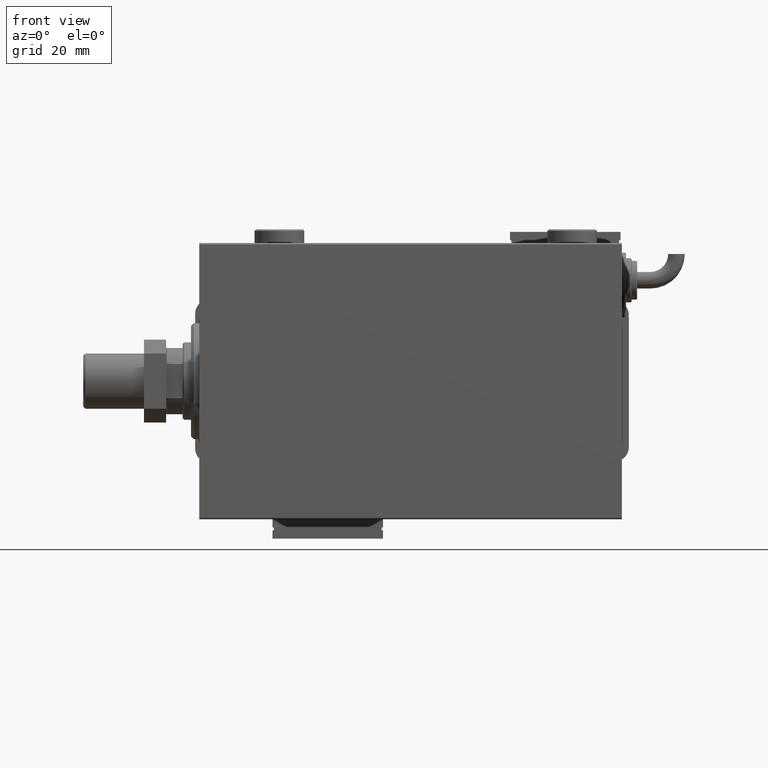
[diagram: clean part render]
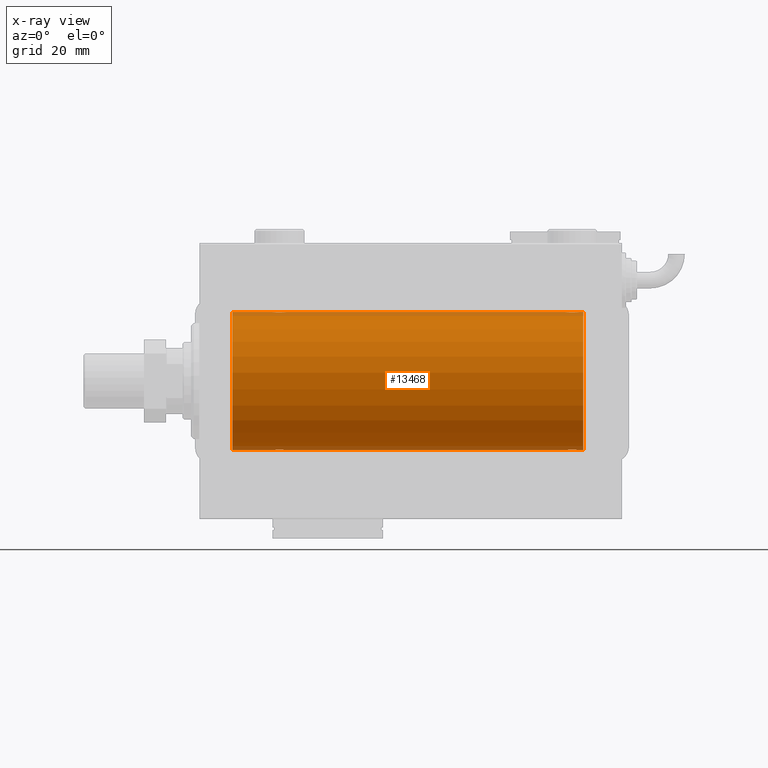
[diagram: x-ray — body ghosted, one internal face saturated and labeled with its STEP entity id]
A machine part, front view, then the same camera in x-ray: the body is ghosted and one INTERNAL B-rep face — a face not visible from any outside direction — is saturated and labeled: STEP entity #13468.
In plain terms, the highlighted cylindrical surface (partial cylindrical patch) has radius 25 mm, axis along (-1, -0, -0).
Its self-contained STEP definition (entity closure, byte-faithful):
#176 = CARTESIAN_POINT ( 'NONE',  ( 133.3461666385066167, -1.881857718844717642, 24.92933960374833546 ) ) ;
#406 = CARTESIAN_POINT ( 'NONE',  ( 139.0000000000000000, 0.000000000000000000, 0.000000000000000000 ) ) ;
#448 = CARTESIAN_POINT ( 'NONE',  ( 136.9874981583439819, -1.525407911884361534, -24.95379469572361941 ) ) ;
#477 = EDGE_CURVE ( 'NONE', #9784, #25607, #24844, .T. ) ;
#481 = CARTESIAN_POINT ( 'NONE',  ( 134.8329350482193831, -2.499872792855079240, 24.87469871246083031 ) ) ;
#769 = CARTESIAN_POINT ( 'NONE',  ( 136.8841238278646983, -1.651251241585101059, -24.94567559498349141 ) ) ;
#863 = CARTESIAN_POINT ( 'NONE',  ( 31.50000000000000000, 3.061616978460191625E-15, -25.00000000000000000 ) ) ;
#1398 = CARTESIAN_POINT ( 'NONE',  ( 27.74915976075944712, -2.170728182476714174, -24.90574631553725027 ) ) ;
#2023 = CARTESIAN_POINT ( 'NONE',  ( 27.11814045851354393, -1.653834020452933151, -24.94550385189584674 ) ) ;
#2637 = CARTESIAN_POINT ( 'NONE',  ( 26.50000000000001066, -0.3305063766663757785, -25.00000000000000355 ) ) ;
#3109 = CARTESIAN_POINT ( 'NONE',  ( 27.88963203491136156, -2.245863995402901381, 24.89899750494197050 ) ) ;
#3404 = VECTOR ( 'NONE', #49369, 1000.000000000000000 ) ;
#4022 = CARTESIAN_POINT ( 'NONE',  ( 30.10723845838409929, -2.247417070759899271, 24.89885693081946272 ) ) ;
#4534 = ORIENTED_EDGE ( 'NONE', *, *, #51432, .T. ) ;
#4857 = CARTESIAN_POINT ( 'NONE',  ( 136.5225677434018792, -1.989585286700252809, 24.92087098724766747 ) ) ;
#4891 = CARTESIAN_POINT ( 'NONE',  ( 137.5000000000000000, 3.061616978453486307E-15, -25.00000000000000000 ) ) ;
#5087 = FACE_OUTER_BOUND ( 'NONE', #56194, .T. ) ;
#5131 = CARTESIAN_POINT ( 'NONE',  ( 137.5000000000000000, -0.1631750940176147080, -25.00000000000000711 ) ) ;
#5436 = CARTESIAN_POINT ( 'NONE',  ( 135.1670649517805884, -2.499872792855077464, -24.87469871246082320 ) ) ;
#5786 = CARTESIAN_POINT ( 'NONE',  ( 29.32947680114268962, -2.483544361357264751, -24.87635491893502149 ) ) ;
#6085 = CARTESIAN_POINT ( 'NONE',  ( 28.67403429960539896, -2.484007091859758543, -24.87630842367763151 ) ) ;
#6332 = CARTESIAN_POINT ( 'NONE',  ( 26.50000000000000355, -1.828402720252098442E-15, -25.00000000000000000 ) ) ;
#6690 = CARTESIAN_POINT ( 'NONE',  ( 29.80788342405805835, -2.371528299825740760, -24.88734287464371064 ) ) ;
#7042 = DIRECTION ( 'NONE',  ( -1.000000000000000000, -0.000000000000000000, -0.000000000000000000 ) ) ;
#7159 = CARTESIAN_POINT ( 'NONE',  ( 26.57985090779070703, -0.6480119923854221753, 24.99212088949390420 ) ) ;
#7282 = EDGE_CURVE ( 'NONE', #9735, #39839, #38428, .T. ) ;
#7567 = CARTESIAN_POINT ( 'NONE',  ( 134.1956433908369775, -2.372734907014170336, -24.88722742718433167 ) ) ;
#7773 = CARTESIAN_POINT ( 'NONE',  ( 29.64560666148631540, -2.420689345803762382, 24.88254961038873958 ) ) ;
#8542 = DIRECTION ( 'NONE',  ( -1.000000000000000000, -0.000000000000000000, -0.000000000000000000 ) ) ;
#8906 = CARTESIAN_POINT ( 'NONE',  ( 135.8043566091630510, -2.372734907014173000, 24.88722742718433878 ) ) ;
#8986 = VERTEX_POINT ( 'NONE', #6332 ) ;
#9305 = CARTESIAN_POINT ( 'NONE',  ( 30.88185954148645251, -1.653834020452943809, 24.94550385189585029 ) ) ;
#9488 = ORIENTED_EDGE ( 'NONE', *, *, #42208, .F. ) ;
#9495 = CARTESIAN_POINT ( 'NONE',  ( 136.5253618224307957, -1.987446652080256060, -24.92104239223419881 ) ) ;
#9735 = VERTEX_POINT ( 'NONE', #4891 ) ;
#9784 = VERTEX_POINT ( 'NONE', #48479 ) ;
#10129 = CARTESIAN_POINT ( 'NONE',  ( 135.6490439016909875, -2.419770561643898255, -24.88263927071751169 ) ) ;
#10462 = CARTESIAN_POINT ( 'NONE',  ( 29.64904390169096970, -2.419770561643902695, -24.88263927071750459 ) ) ;
#10775 = CARTESIAN_POINT ( 'NONE',  ( 30.65383336149337623, -1.881857718844709870, -24.92933960374833191 ) ) ;
#11102 = LINE ( 'NONE', #30357, #3404 ) ;
#11371 = CARTESIAN_POINT ( 'NONE',  ( 31.24760251019551305, -1.106703319666880514, -24.97594585958023927 ) ) ;
#11649 = CARTESIAN_POINT ( 'NONE',  ( 133.0146196628290340, -1.528152964861315244, -24.95362559291378801 ) ) ;
#13062 = CARTESIAN_POINT ( 'NONE',  ( 30.52256774340189338, -1.989585286700249256, 24.92087098724766747 ) ) ;
#13269 = CARTESIAN_POINT ( 'NONE',  ( 132.6278403059139634, -0.8058335233485443005, 24.98746277938383287 ) ) ;
#13468 = ADVANCED_FACE ( 'NONE', ( #5087 ), #24069, .F. ) ;
#13680 = CARTESIAN_POINT ( 'NONE',  ( 31.50000000000000000, -6.390602579065537931E-15, 25.00000000000000000 ) ) ;
#13863 = CARTESIAN_POINT ( 'NONE',  ( 132.5000000000000000, -7.333514367867041916E-15, -25.00000000000000000 ) ) ;
#13898 = CARTESIAN_POINT ( 'NONE',  ( 132.8298870971907490, -1.252049606094326695, 24.96900299967627390 ) ) ;
#14096 = VECTOR ( 'NONE', #7042, 1000.000000000000000 ) ;
#14203 = CARTESIAN_POINT ( 'NONE',  ( 135.6456066614862834, -2.420689345803761938, 24.88254961038872892 ) ) ;
#14790 = CARTESIAN_POINT ( 'NONE',  ( 136.1103679650886988, -2.245863995402897384, -24.89899750494197761 ) ) ;
#14942 = CARTESIAN_POINT ( 'NONE',  ( 12.00000000000001066, 0.000000000000000000, 0.000000000000000000 ) ) ;
#15004 = DIRECTION ( 'NONE',  ( -1.000000000000000000, -0.000000000000000000, -0.000000000000000000 ) ) ;
#15093 = CARTESIAN_POINT ( 'NONE',  ( 134.3543933385136881, -2.420689345803760162, -24.88254961038872892 ) ) ;
#15125 = CARTESIAN_POINT ( 'NONE',  ( 31.17011290280924740, -1.252049606094333578, -24.96900299967627390 ) ) ;
#15709 = CARTESIAN_POINT ( 'NONE',  ( 137.2476025101955202, -1.106703319666876295, -24.97594585958023927 ) ) ;
#16352 = VECTOR ( 'NONE', #8542, 1000.000000000000000 ) ;
#16617 = CARTESIAN_POINT ( 'NONE',  ( 133.8927615416158972, -2.247417070759893498, -24.89885693081946982 ) ) ;
#16818 = CARTESIAN_POINT ( 'NONE',  ( 28.83293504821939734, -2.499872792855082793, 24.87469871246083031 ) ) ;
#16916 = CARTESIAN_POINT ( 'NONE',  ( 132.8317235850605016, -1.255214705003186548, -24.96884293994578741 ) ) ;
#17124 = CARTESIAN_POINT ( 'NONE',  ( 27.11587617213529100, -1.651251241585102614, 24.94567559498349141 ) ) ;
#17423 = CARTESIAN_POINT ( 'NONE',  ( 28.35095609830903385, -2.419770561643910245, 24.88263927071751169 ) ) ;
#18250 = CARTESIAN_POINT ( 'NONE',  ( 132.5158215994234752, -0.3254210271412208977, 24.99840249400844527 ) ) ;
#18342 = CARTESIAN_POINT ( 'NONE',  ( 30.65121133559111755, -1.884161199660622454, 24.92916496727982434 ) ) ;
#18390 = ORIENTED_EDGE ( 'NONE', *, *, #40808, .T. ) ;
#18884 = CARTESIAN_POINT ( 'NONE',  ( 137.4334935523974650, -0.6588655613945811895, 24.99312727339969697 ) ) ;
#19154 = ORIENTED_EDGE ( 'NONE', *, *, #55027, .T. ) ;
#19182 = CARTESIAN_POINT ( 'NONE',  ( 137.5000000000000000, 1.404322005998729010E-15, 25.00000000000000000 ) ) ;
#19459 = CARTESIAN_POINT ( 'NONE',  ( 136.2538319542450154, -2.169003991399864884, -24.90589728951138682 ) ) ;
#19802 = CARTESIAN_POINT ( 'NONE',  ( 31.49999999999999289, -0.1631750940176170117, -25.00000000000000711 ) ) ;
#20104 = CARTESIAN_POINT ( 'NONE',  ( 31.50000000000000000, 3.061616978460191625E-15, -25.00000000000000000 ) ) ;
#20400 = CARTESIAN_POINT ( 'NONE',  ( 30.11036796508864555, -2.245863995402895164, -24.89899750494197406 ) ) ;
#20837 = CARTESIAN_POINT ( 'NONE',  ( 132.5000000000000000, -1.941505016884693205E-23, 25.00000000000000000 ) ) ;
#20996 = CARTESIAN_POINT ( 'NONE',  ( 12.00000000000001066, 0.000000000000000000, 25.00000000000000000 ) ) ;
#21023 = ORIENTED_EDGE ( 'NONE', *, *, #24775, .T. ) ;
#21123 = ORIENTED_EDGE ( 'NONE', *, *, #45217, .F. ) ;
#21175 = CARTESIAN_POINT ( 'NONE',  ( 27.47463817756919369, -1.987446652080264720, 24.92104239223420592 ) ) ;
#21275 = CARTESIAN_POINT ( 'NONE',  ( 133.3487886644088860, -1.884161199660620456, -24.92916496727982079 ) ) ;
#21480 = CARTESIAN_POINT ( 'NONE',  ( 27.01250184165601453, -1.525407911884366863, 24.95379469572361941 ) ) ;
#21690 = CARTESIAN_POINT ( 'NONE',  ( 139.0000000000000000, 3.061616997868383043E-15, -25.00000000000000000 ) ) ;
#21785 = CARTESIAN_POINT ( 'NONE',  ( 26.62784030591392437, -0.8058335233485459659, 24.98746277938383287 ) ) ;
#21923 = CARTESIAN_POINT ( 'NONE',  ( 26.83172358506042698, -1.255214705003176112, -24.96884293994577320 ) ) ;
#22221 = CARTESIAN_POINT ( 'NONE',  ( 26.75393620905933645, -1.109818057797413715, -24.97580694515542277 ) ) ;
#22390 = CARTESIAN_POINT ( 'NONE',  ( 26.82988709719075970, -1.252049606094339351, 24.96900299967627390 ) ) ;
#22423 = VECTOR ( 'NONE', #40675, 1000.000000000000000 ) ;
#23452 = DIRECTION ( 'NONE',  ( -1.000000000000000000, -0.000000000000000000, -0.000000000000000000 ) ) ;
#23788 = VERTEX_POINT ( 'NONE', #863 ) ;
#24069 = CYLINDRICAL_SURFACE ( 'NONE', #46527, 25.00000000000000000 ) ;
#24113 = CARTESIAN_POINT ( 'NONE',  ( 137.1701129028092510, -1.252049606094334022, -24.96900299967627390 ) ) ;
#24142 = AXIS2_PLACEMENT_3D ( 'NONE', #32157, #56451, #51160 ) ;
#24143 = CARTESIAN_POINT ( 'NONE',  ( 132.5000000000000000, -1.941505016884693205E-23, 25.00000000000000000 ) ) ;
#24189 = VERTEX_POINT ( 'NONE', #20996 ) ;
#24763 = CARTESIAN_POINT ( 'NONE',  ( 28.19564339083697746, -2.372734907014167671, -24.88722742718433167 ) ) ;
#24775 = EDGE_CURVE ( 'NONE', #58804, #50383, #33832, .T. ) ;
#24844 = B_SPLINE_CURVE_WITH_KNOTS ( 'NONE', 3,
 ( #60055, #54502, #44856, #7159, #21785, #59760, #22390, #21480, #17124, #55100, #21175, #50741, #3109, #36099, #17423, #40473, #16818, #31734, #31428, #7773, #45768, #4022, #32658, #13062, #18342, #9305, #37015, #55709, #51966, #37938, #32344, #13680 ),
 .UNSPECIFIED., .F., .F.,
 ( 4, 2, 2, 2, 2, 2, 2, 2, 2, 2, 2, 2, 2, 2, 2, 4 ),
 ( 0.007821024441662254717, 0.008309723826317859385, 0.008798423210973464054, 0.009287122595629068722, 0.009775821980284673390, 0.01026452136494027806, 0.01075322074959588099, 0.01124192013425148566, 0.01173061951890709033, 0.01221931890356269500, 0.01270801828821829967, 0.01319671767287390260, 0.01368541705752950727, 0.01417411644218511194, 0.01466281582684071660, 0.01564021459615192594 ),
 .UNSPECIFIED. ) ;
#24903 = EDGE_CURVE ( 'NONE', #23788, #8986, #30831, .T. ) ;
#25067 = CARTESIAN_POINT ( 'NONE',  ( 27.89276154161590426, -2.247417070759891278, -24.89885693081946272 ) ) ;
#25329 = CARTESIAN_POINT ( 'NONE',  ( 132.5000000000000000, -7.333514367867041916E-15, -25.00000000000000000 ) ) ;
#25607 = VERTEX_POINT ( 'NONE', #36462 ) ;
#25679 = CARTESIAN_POINT ( 'NONE',  ( 28.35439333851368815, -2.420689345803754833, -24.88254961038873958 ) ) ;
#25737 = CARTESIAN_POINT ( 'NONE',  ( 139.0000000000000000, 0.000000000000000000, 25.00000000000000000 ) ) ;
#27054 = VECTOR ( 'NONE', #55969, 1000.000000000000000 ) ;
#27690 = ORIENTED_EDGE ( 'NONE', *, *, #53334, .T. ) ;
#27887 = CARTESIAN_POINT ( 'NONE',  ( 136.8818595414864205, -1.653834020452942477, 24.94550385189585029 ) ) ;
#27937 = CARTESIAN_POINT ( 'NONE',  ( 139.0000000000000000, 3.061616997868383043E-15, -25.00000000000000000 ) ) ;
#28191 = CARTESIAN_POINT ( 'NONE',  ( 134.6705231988572962, -2.483544361357268304, 24.87635491893501793 ) ) ;
#29122 = CARTESIAN_POINT ( 'NONE',  ( 30.52536182243080631, -1.987446652080256504, -24.92104239223419881 ) ) ;
#29861 = DIRECTION ( 'NONE',  ( 0.000000000000000000, 0.000000000000000000, 1.000000000000000000 ) ) ;
#30357 = CARTESIAN_POINT ( 'NONE',  ( 139.0000000000000000, 3.061616997868383043E-15, -25.00000000000000000 ) ) ;
#30831 = B_SPLINE_CURVE_WITH_KNOTS ( 'NONE', 3,
 ( #20104, #19802, #44064, #58686, #38772, #11371, #15125, #39077, #49345, #10775, #29122, #48129, #20400, #6690, #10462, #5786, #58069, #48744, #6085, #25679, #24763, #25067, #1398, #55548, #31871, #2023, #40295, #21923, #22221, #36542, #2637, #41200 ),
 .UNSPECIFIED., .F., .F.,
 ( 4, 2, 2, 2, 2, 2, 2, 2, 2, 2, 2, 2, 2, 2, 2, 4 ),
 ( 0.007821024441662299820, 0.008309723826317909692, 0.008798423210973517830, 0.009287122595629124233, 0.009775821980284728902, 0.01026452136494033357, 0.01075322074959593997, 0.01124192013425154464, 0.01173061951890715104, 0.01221931890356275571, 0.01270801828821836038, 0.01319671767287396852, 0.01368541705752957319, 0.01417411644218517959, 0.01466281582684078426, 0.01564021459615199533 ),
 .UNSPECIFIED. ) ;
#30880 = ORIENTED_EDGE ( 'NONE', *, *, #24903, .T. ) ;
#31102 = CIRCLE ( 'NONE', #24142, 25.00000000000000000 ) ;
#31428 = CARTESIAN_POINT ( 'NONE',  ( 29.32596570039459394, -2.484007091859766092, 24.87630842367763506 ) ) ;
#31734 = CARTESIAN_POINT ( 'NONE',  ( 29.16323589638542302, -2.500125740978195843, 24.87467329022545215 ) ) ;
#31871 = CARTESIAN_POINT ( 'NONE',  ( 27.34878866440888601, -1.884161199660611796, -24.92916496727982434 ) ) ;
#32157 = CARTESIAN_POINT ( 'NONE',  ( 139.0000000000000000, 0.000000000000000000, 0.000000000000000000 ) ) ;
#32191 = LINE ( 'NONE', #46841, #16352 ) ;
#32245 = CARTESIAN_POINT ( 'NONE',  ( 136.1072384583841028, -2.247417070759893942, 24.89885693081946627 ) ) ;
#32344 = CARTESIAN_POINT ( 'NONE',  ( 31.49999999999997158, -0.3305063766663704494, 25.00000000000000000 ) ) ;
#32565 = CARTESIAN_POINT ( 'NONE',  ( 132.7523974898044798, -1.106703319666880958, 24.97594585958023217 ) ) ;
#32658 = CARTESIAN_POINT ( 'NONE',  ( 30.25084023924054932, -2.170728182476723500, 24.90574631553725027 ) ) ;
#32876 = CARTESIAN_POINT ( 'NONE',  ( 134.1921165759419239, -2.371528299825747421, 24.88734287464370709 ) ) ;
#33183 = CARTESIAN_POINT ( 'NONE',  ( 136.2508402392405173, -2.170728182476725276, 24.90574631553724672 ) ) ;
#33773 = CARTESIAN_POINT ( 'NONE',  ( 137.4201490922092717, -0.6480119923854158470, -24.99212088949390775 ) ) ;
#33832 = B_SPLINE_CURVE_WITH_KNOTS ( 'NONE', 3,
 ( #24143, #42202, #18250, #61191, #13269, #32565, #13898, #60878, #61506, #176, #41893, #47515, #37226, #32876, #57151, #28191, #481, #56230, #37847, #14203, #8906, #32245, #33183, #4857, #52178, #27887, #42834, #46896, #51877, #18884, #47200, #19182 ),
 .UNSPECIFIED., .F., .F.,
 ( 4, 2, 2, 2, 2, 2, 2, 2, 2, 2, 2, 2, 2, 2, 2, 4 ),
 ( 0.007821024441662296350, 0.008309723826317906223, 0.008798423210973516095, 0.009287122595629124233, 0.009775821980284732371, 0.01026452136494034224, 0.01075322074959595212, 0.01124192013425156025, 0.01173061951890716839, 0.01221931890356277826, 0.01270801828821838814, 0.01319671767287399627, 0.01368541705752960788, 0.01417411644218521602, 0.01466281582684082589, 0.01564021459615201268 ),
 .UNSPECIFIED. ) ;
#33928 = DIRECTION ( 'NONE',  ( -1.000000000000000000, 0.000000000000000000, 0.000000000000000000 ) ) ;
#34348 = VECTOR ( 'NONE', #15004, 1000.000000000000000 ) ;
#34685 = CARTESIAN_POINT ( 'NONE',  ( 136.6538333614933833, -1.881857718844715199, -24.92933960374833546 ) ) ;
#34990 = CARTESIAN_POINT ( 'NONE',  ( 133.4774322565981208, -1.989585286700252809, -24.92087098724766037 ) ) ;
#35894 = CARTESIAN_POINT ( 'NONE',  ( 12.00000000000001066, 3.061616997868383043E-15, -25.00000000000000000 ) ) ;
#35895 = CARTESIAN_POINT ( 'NONE',  ( 132.7539362090593329, -1.109818057797415047, -24.97580694515542987 ) ) ;
#36099 = CARTESIAN_POINT ( 'NONE',  ( 28.19211657594194520, -2.371528299825748309, 24.88734287464370709 ) ) ;
#36462 = CARTESIAN_POINT ( 'NONE',  ( 31.50000000000000000, -6.390602579065537931E-15, 25.00000000000000000 ) ) ;
#36542 = CARTESIAN_POINT ( 'NONE',  ( 26.56650644760253499, -0.6588655613945862966, -24.99312727339971119 ) ) ;
#36976 = LINE ( 'NONE', #27937, #27054 ) ;
#37015 = CARTESIAN_POINT ( 'NONE',  ( 30.98538033717094464, -1.528152964861315244, 24.95362559291378801 ) ) ;
#37226 = CARTESIAN_POINT ( 'NONE',  ( 133.8896320349113580, -2.245863995402900049, 24.89899750494197050 ) ) ;
#37847 = CARTESIAN_POINT ( 'NONE',  ( 135.3259657003945620, -2.484007091859763872, 24.87630842367762796 ) ) ;
#37938 = CARTESIAN_POINT ( 'NONE',  ( 31.43349355239747567, -0.6588655613945917366, 24.99312727339970053 ) ) ;
#38384 = DIRECTION ( 'NONE',  ( 0.000000000000000000, 0.000000000000000000, 1.000000000000000000 ) ) ;
#38428 = B_SPLINE_CURVE_WITH_KNOTS ( 'NONE', 3,
 ( #47790, #5131, #39348, #33773, #39044, #15709, #24113, #448, #769, #34685, #9495, #19459, #14790, #52782, #10129, #48098, #5436, #57739, #43428, #15093, #7567, #16617, #45253, #34990, #21275, #49918, #11649, #16916, #35895, #53990, #54598, #25329 ),
 .UNSPECIFIED., .F., .F.,
 ( 4, 2, 2, 2, 2, 2, 2, 2, 2, 2, 2, 2, 2, 2, 2, 4 ),
 ( 0.007821024441662296350, 0.008309723826317904488, 0.008798423210973514361, 0.009287122595629122498, 0.009775821980284732371, 0.01026452136494034051, 0.01075322074959594865, 0.01124192013425155852, 0.01173061951890716666, 0.01221931890356277653, 0.01270801828821838467, 0.01319671767287399280, 0.01368541705752960094, 0.01417411644218521082, 0.01466281582684082069, 0.01564021459615200574 ),
 .UNSPECIFIED. ) ;
#38767 = ORIENTED_EDGE ( 'NONE', *, *, #7282, .T. ) ;
#38772 = CARTESIAN_POINT ( 'NONE',  ( 31.37215969408608274, -0.8058335233485438565, -24.98746277938383997 ) ) ;
#39044 = CARTESIAN_POINT ( 'NONE',  ( 137.3721596940860650, -0.8058335233485393045, -24.98746277938383287 ) ) ;
#39077 = CARTESIAN_POINT ( 'NONE',  ( 30.98749815834397481, -1.525407911884360868, -24.95379469572361941 ) ) ;
#39251 = LINE ( 'NONE', #59402, #34348 ) ;
#39348 = CARTESIAN_POINT ( 'NONE',  ( 137.4841784005766101, -0.3254210271412156796, -24.99840249400845238 ) ) ;
#39625 = ORIENTED_EDGE ( 'NONE', *, *, #477, .T. ) ;
#39839 = VERTEX_POINT ( 'NONE', #13863 ) ;
#40295 = CARTESIAN_POINT ( 'NONE',  ( 27.01461966282905891, -1.528152964861306584, -24.95362559291379156 ) ) ;
#40473 = CARTESIAN_POINT ( 'NONE',  ( 28.67052319885730682, -2.483544361357271857, 24.87635491893501793 ) ) ;
#40675 = DIRECTION ( 'NONE',  ( -1.000000000000000000, -0.000000000000000000, -0.000000000000000000 ) ) ;
#40808 = EDGE_CURVE ( 'NONE', #44994, #9735, #36976, .T. ) ;
#41200 = CARTESIAN_POINT ( 'NONE',  ( 26.50000000000000355, -1.828402720252098442E-15, -25.00000000000000000 ) ) ;
#41893 = CARTESIAN_POINT ( 'NONE',  ( 133.4746381775692043, -1.987446652080256948, 24.92104239223420592 ) ) ;
#42202 = CARTESIAN_POINT ( 'NONE',  ( 132.5000000000000000, -0.1631750940176186493, 25.00000000000001066 ) ) ;
#42208 = EDGE_CURVE ( 'NONE', #44994, #55001, #31102, .T. ) ;
#42752 = ORIENTED_EDGE ( 'NONE', *, *, #57349, .F. ) ;
#42834 = CARTESIAN_POINT ( 'NONE',  ( 136.9853803371709375, -1.528152964861297258, 24.95362559291378446 ) ) ;
#43428 = CARTESIAN_POINT ( 'NONE',  ( 134.6740342996053812, -2.484007091859762983, -24.87630842367762796 ) ) ;
#44064 = CARTESIAN_POINT ( 'NONE',  ( 31.48417840057656747, -0.3254210271412188993, -24.99840249400844883 ) ) ;
#44212 = CIRCLE ( 'NONE', #44256, 25.00000000000000000 ) ;
#44256 = AXIS2_PLACEMENT_3D ( 'NONE', #14942, #33928, #29861 ) ;
#44856 = CARTESIAN_POINT ( 'NONE',  ( 26.51582159942343608, -0.3254210271412222300, 24.99840249400844883 ) ) ;
#44994 = VERTEX_POINT ( 'NONE', #55126 ) ;
#45217 = EDGE_CURVE ( 'NONE', #9784, #24189, #59347, .T. ) ;
#45253 = CARTESIAN_POINT ( 'NONE',  ( 133.7491597607594542, -2.170728182476725276, -24.90574631553725027 ) ) ;
#45768 = CARTESIAN_POINT ( 'NONE',  ( 29.80435660916301899, -2.372734907014176553, 24.88722742718433878 ) ) ;
#46527 = AXIS2_PLACEMENT_3D ( 'NONE', #406, #23452, #38384 ) ;
#46841 = CARTESIAN_POINT ( 'NONE',  ( 139.0000000000000000, 0.000000000000000000, 25.00000000000000000 ) ) ;
#46892 = LINE ( 'NONE', #21690, #22423 ) ;
#46896 = CARTESIAN_POINT ( 'NONE',  ( 137.1682764149395837, -1.255214705003166564, 24.96884293994578385 ) ) ;
#47200 = CARTESIAN_POINT ( 'NONE',  ( 137.4999999999999716, -0.3305063766663748903, 24.99999999999999289 ) ) ;
#47515 = CARTESIAN_POINT ( 'NONE',  ( 133.7461680457549846, -2.169003991399866216, 24.90589728951138682 ) ) ;
#47790 = CARTESIAN_POINT ( 'NONE',  ( 137.5000000000000000, 3.061616978453486307E-15, -25.00000000000000000 ) ) ;
#48098 = CARTESIAN_POINT ( 'NONE',  ( 135.3294768011427323, -2.483544361357263419, -24.87635491893501083 ) ) ;
#48129 = CARTESIAN_POINT ( 'NONE',  ( 30.25383195424503313, -2.169003991399864884, -24.90589728951138682 ) ) ;
#48479 = CARTESIAN_POINT ( 'NONE',  ( 26.50000000000000355, -1.940558383798427991E-23, 25.00000000000000000 ) ) ;
#48744 = CARTESIAN_POINT ( 'NONE',  ( 28.83676410361456632, -2.500125740978188738, -24.87467329022545215 ) ) ;
#49345 = CARTESIAN_POINT ( 'NONE',  ( 30.88412382786471611, -1.651251241585095508, -24.94567559498348785 ) ) ;
#49369 = DIRECTION ( 'NONE',  ( -1.000000000000000000, -0.000000000000000000, -0.000000000000000000 ) ) ;
#49918 = CARTESIAN_POINT ( 'NONE',  ( 133.1181404585135226, -1.653834020452942477, -24.94550385189584318 ) ) ;
#50383 = VERTEX_POINT ( 'NONE', #57118 ) ;
#50552 = VERTEX_POINT ( 'NONE', #35894 ) ;
#50741 = CARTESIAN_POINT ( 'NONE',  ( 27.74616804575498108, -2.169003991399871989, 24.90589728951138326 ) ) ;
#51160 = DIRECTION ( 'NONE',  ( 0.000000000000000000, 0.000000000000000000, 1.000000000000000000 ) ) ;
#51432 = EDGE_CURVE ( 'NONE', #39839, #23788, #11102, .T. ) ;
#51648 = EDGE_CURVE ( 'NONE', #55001, #50383, #32191, .T. ) ;
#51877 = CARTESIAN_POINT ( 'NONE',  ( 137.2460637909406955, -1.109818057797409718, 24.97580694515542632 ) ) ;
#51966 = CARTESIAN_POINT ( 'NONE',  ( 31.24606379094066000, -1.109818057797419932, 24.97580694515541921 ) ) ;
#52178 = CARTESIAN_POINT ( 'NONE',  ( 136.6512113355911708, -1.884161199660621344, 24.92916496727982789 ) ) ;
#52782 = CARTESIAN_POINT ( 'NONE',  ( 135.8078834240581330, -2.371528299825745645, -24.88734287464372130 ) ) ;
#53334 = EDGE_CURVE ( 'NONE', #50552, #24189, #44212, .T. ) ;
#53990 = CARTESIAN_POINT ( 'NONE',  ( 132.5665064476025066, -0.6588655613945854084, -24.99312727339970763 ) ) ;
#54050 = ORIENTED_EDGE ( 'NONE', *, *, #51648, .F. ) ;
#54502 = CARTESIAN_POINT ( 'NONE',  ( 26.50000000000000711, -0.1631750940176204812, 25.00000000000000711 ) ) ;
#54598 = CARTESIAN_POINT ( 'NONE',  ( 132.5000000000000284, -0.3305063766663819402, -24.99999999999999645 ) ) ;
#55001 = VERTEX_POINT ( 'NONE', #59962 ) ;
#55027 = EDGE_CURVE ( 'NONE', #8986, #50552, #46892, .T. ) ;
#55100 = CARTESIAN_POINT ( 'NONE',  ( 27.34616663850662377, -1.881857718844717642, 24.92933960374833902 ) ) ;
#55126 = CARTESIAN_POINT ( 'NONE',  ( 139.0000000000000000, 3.061616997868383043E-15, -25.00000000000000000 ) ) ;
#55548 = CARTESIAN_POINT ( 'NONE',  ( 27.47743225659810307, -1.989585286700239708, -24.92087098724766392 ) ) ;
#55709 = CARTESIAN_POINT ( 'NONE',  ( 31.16827641493957657, -1.255214705003185438, 24.96884293994578385 ) ) ;
#55969 = DIRECTION ( 'NONE',  ( -1.000000000000000000, -0.000000000000000000, -0.000000000000000000 ) ) ;
#56194 = EDGE_LOOP ( 'NONE', ( #9488, #18390, #38767, #4534, #30880, #19154, #27690, #21123, #39625, #42752, #21023, #54050 ) ) ;
#56230 = CARTESIAN_POINT ( 'NONE',  ( 135.1632358963854301, -2.500125740978193178, 24.87467329022544504 ) ) ;
#56451 = DIRECTION ( 'NONE',  ( -1.000000000000000000, 0.000000000000000000, 0.000000000000000000 ) ) ;
#57118 = CARTESIAN_POINT ( 'NONE',  ( 137.5000000000000000, 1.404322005998729010E-15, 25.00000000000000000 ) ) ;
#57151 = CARTESIAN_POINT ( 'NONE',  ( 134.3509560983090694, -2.419770561643906248, 24.88263927071751169 ) ) ;
#57349 = EDGE_CURVE ( 'NONE', #58804, #25607, #39251, .T. ) ;
#57739 = CARTESIAN_POINT ( 'NONE',  ( 134.8367641036145699, -2.500125740978193178, -24.87467329022544860 ) ) ;
#58069 = CARTESIAN_POINT ( 'NONE',  ( 29.16706495178059910, -2.499872792855075687, -24.87469871246081965 ) ) ;
#58686 = CARTESIAN_POINT ( 'NONE',  ( 31.42014909220928942, -0.6480119923854186226, -24.99212088949390420 ) ) ;
#58804 = VERTEX_POINT ( 'NONE', #20837 ) ;
#59347 = LINE ( 'NONE', #25737, #14096 ) ;
#59402 = CARTESIAN_POINT ( 'NONE',  ( 139.0000000000000000, 0.000000000000000000, 25.00000000000000000 ) ) ;
#59760 = CARTESIAN_POINT ( 'NONE',  ( 26.75239748980449050, -1.106703319666882956, 24.97594585958023572 ) ) ;
#59962 = CARTESIAN_POINT ( 'NONE',  ( 139.0000000000000000, 0.000000000000000000, 25.00000000000000000 ) ) ;
#60055 = CARTESIAN_POINT ( 'NONE',  ( 26.50000000000000355, -1.940558383798427991E-23, 25.00000000000000000 ) ) ;
#60878 = CARTESIAN_POINT ( 'NONE',  ( 133.0125018416559328, -1.525407911884356205, 24.95379469572361586 ) ) ;
#61191 = CARTESIAN_POINT ( 'NONE',  ( 132.5798509077907283, -0.6480119923854213981, 24.99212088949391131 ) ) ;
#61506 = CARTESIAN_POINT ( 'NONE',  ( 133.1158761721353301, -1.651251241585103724, 24.94567559498349141 ) ) ;